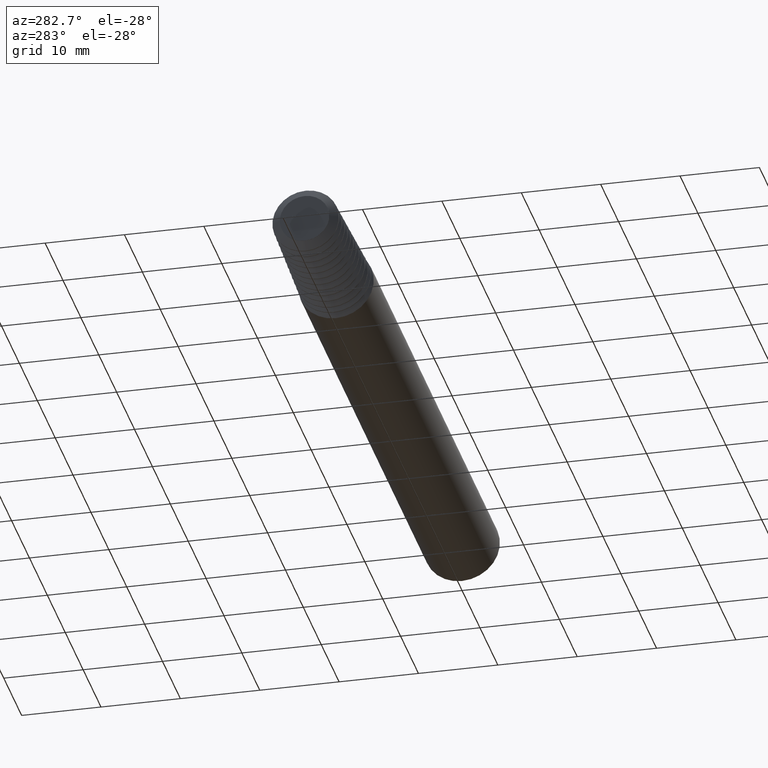
[diagram: clean part render]
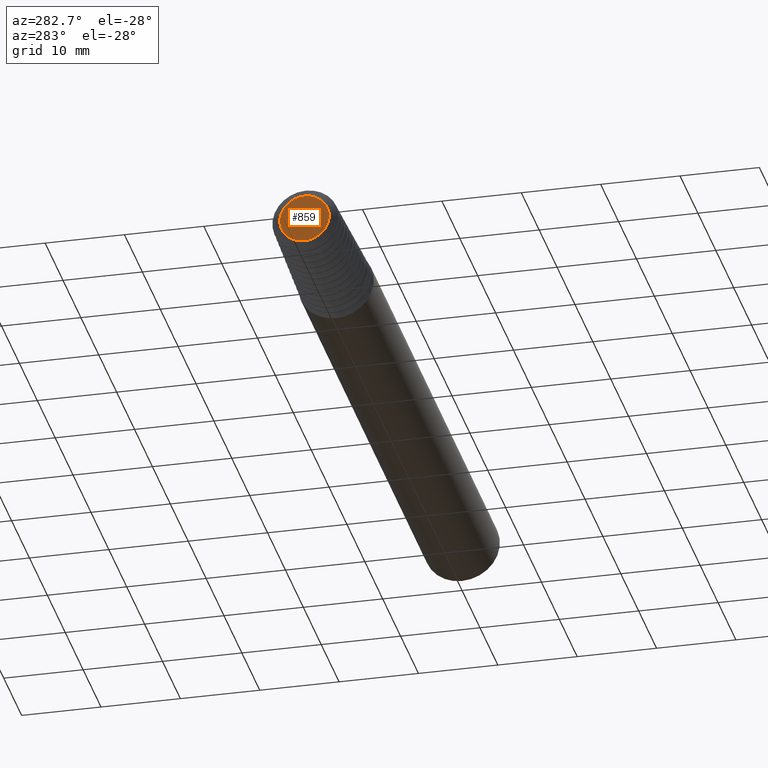
[diagram: same view with one face highlighted and labeled with its STEP entity id]
A machine part, auxiliary view. The second image highlights one B-rep face of the part: STEP entity #859.
In plain terms, the highlighted planar face has unit normal (1, 0, 0).
Its self-contained STEP definition (entity closure, byte-faithful):
#277 = CARTESIAN_POINT ( 'NONE',  ( -1.500000000000000222, 0.0000000000000000000, 0.1225028994375001318 ) ) ;
#283 = CARTESIAN_POINT ( 'NONE',  ( -1.500000000000000222, 1.500227836824046223E-17, -0.1225028994375001318 ) ) ;
#347 = ORIENTED_EDGE ( 'NONE', *, *, #2632, .T. ) ;
#433 = CARTESIAN_POINT ( 'NONE',  ( -1.500000000000000222, 0.0000000000000000000, 0.0000000000000000000 ) ) ;
#435 = VERTEX_POINT ( 'NONE', #283 ) ;
#515 = AXIS2_PLACEMENT_3D ( 'NONE', #433, #625, #2325 ) ;
#625 = DIRECTION ( 'NONE',  ( -1.000000000000000000, -0.0000000000000000000, -0.0000000000000000000 ) ) ;
#778 = DIRECTION ( 'NONE',  ( 0.0000000000000000000, 0.0000000000000000000, -1.000000000000000000 ) ) ;
#859 = ADVANCED_FACE ( 'NONE', ( #1273 ), #2244, .F. ) ;
#905 = AXIS2_PLACEMENT_3D ( 'NONE', #1196, #2648, #778 ) ;
#937 = EDGE_CURVE ( 'NONE', #435, #1807, #1170, .T. ) ;
#1053 = ORIENTED_EDGE ( 'NONE', *, *, #937, .T. ) ;
#1054 = DIRECTION ( 'NONE',  ( -1.000000000000000000, -0.0000000000000000000, -0.0000000000000000000 ) ) ;
#1170 = CIRCLE ( 'NONE', #1375, 0.1225028994375001318 ) ;
#1196 = CARTESIAN_POINT ( 'NONE',  ( -1.500000000000000222, 0.0000000000000000000, 0.0000000000000000000 ) ) ;
#1252 = CARTESIAN_POINT ( 'NONE',  ( -1.500000000000000222, 0.0000000000000000000, 0.0000000000000000000 ) ) ;
#1273 = FACE_OUTER_BOUND ( 'NONE', #1628, .T. ) ;
#1375 = AXIS2_PLACEMENT_3D ( 'NONE', #1252, #1054, #2319 ) ;
#1484 = CIRCLE ( 'NONE', #515, 0.1225028994375001318 ) ;
#1628 = EDGE_LOOP ( 'NONE', ( #347, #1053 ) ) ;
#1807 = VERTEX_POINT ( 'NONE', #277 ) ;
#2244 = PLANE ( 'NONE',  #905 ) ;
#2319 = DIRECTION ( 'NONE',  ( 0.0000000000000000000, 0.0000000000000000000, -1.000000000000000000 ) ) ;
#2325 = DIRECTION ( 'NONE',  ( 0.0000000000000000000, 0.0000000000000000000, -1.000000000000000000 ) ) ;
#2632 = EDGE_CURVE ( 'NONE', #1807, #435, #1484, .T. ) ;
#2648 = DIRECTION ( 'NONE',  ( 1.000000000000000000, 0.0000000000000000000, 0.0000000000000000000 ) ) ;